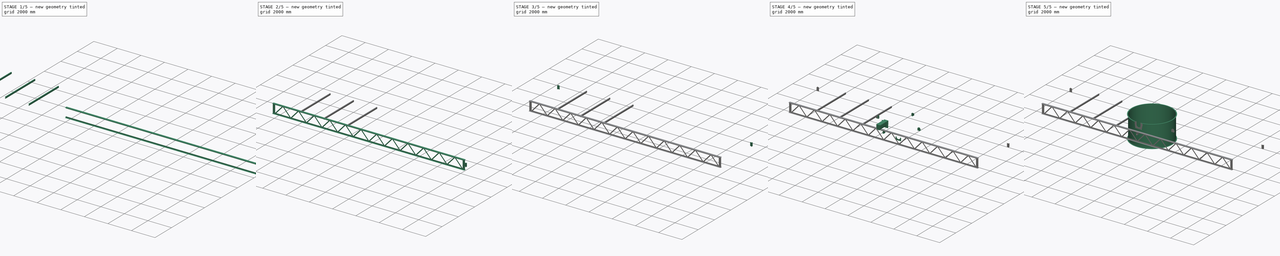
[diagram: build sequence overview — one tinted view per stage of 5, left to right]
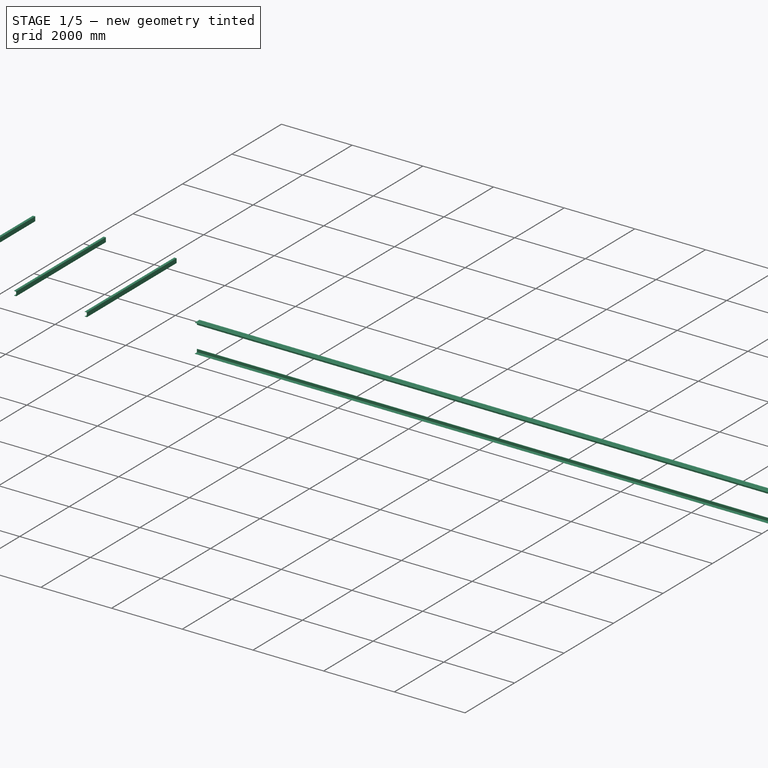
[diagram: stage 1 of 5 — iso view after this stage's code; geometry added in this stage tinted green]
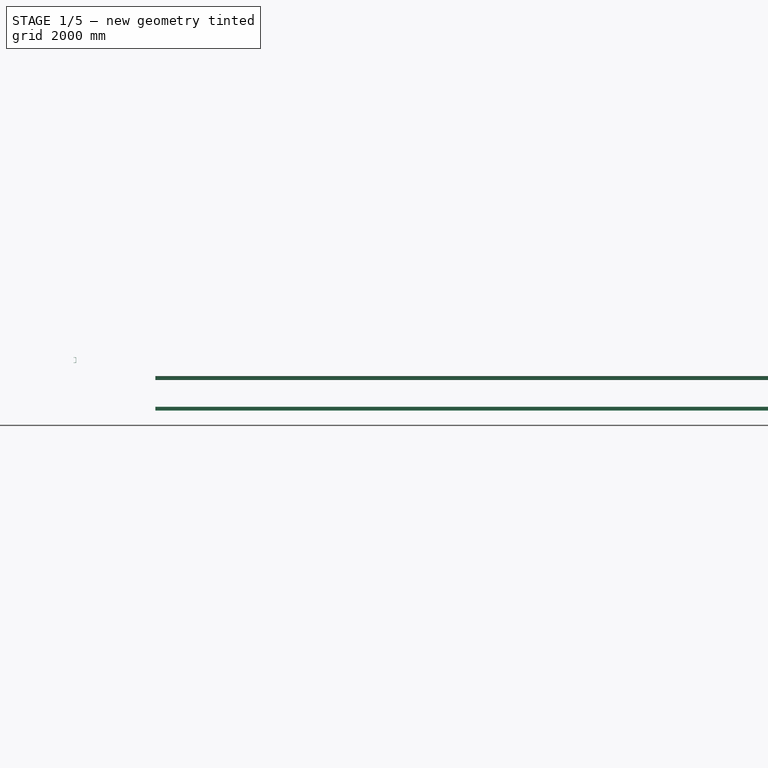
[diagram: stage 1 of 5 — front view after this stage's code; geometry added in this stage tinted green]
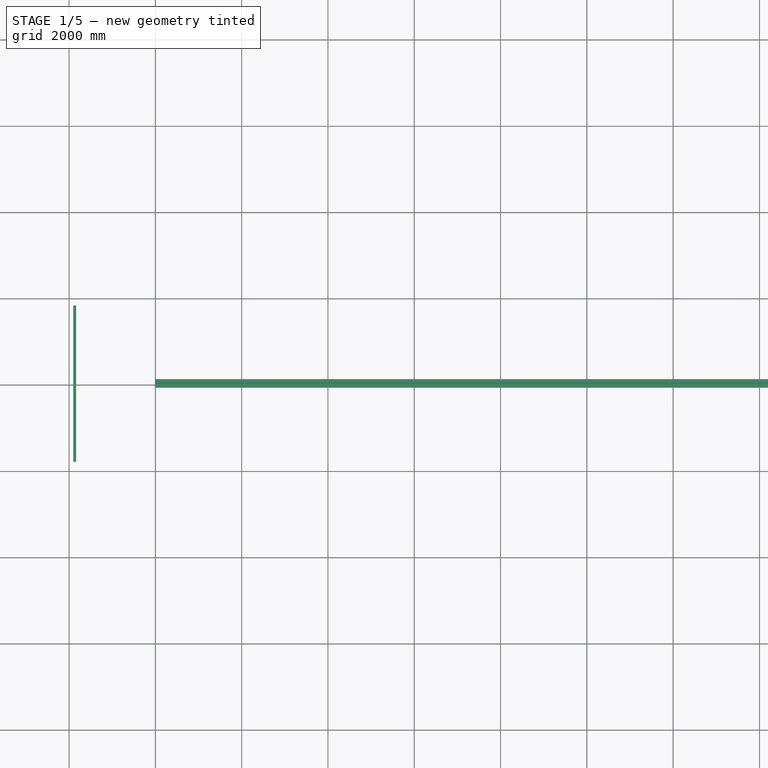
[diagram: stage 1 of 5 — top view after this stage's code; geometry added in this stage tinted green]
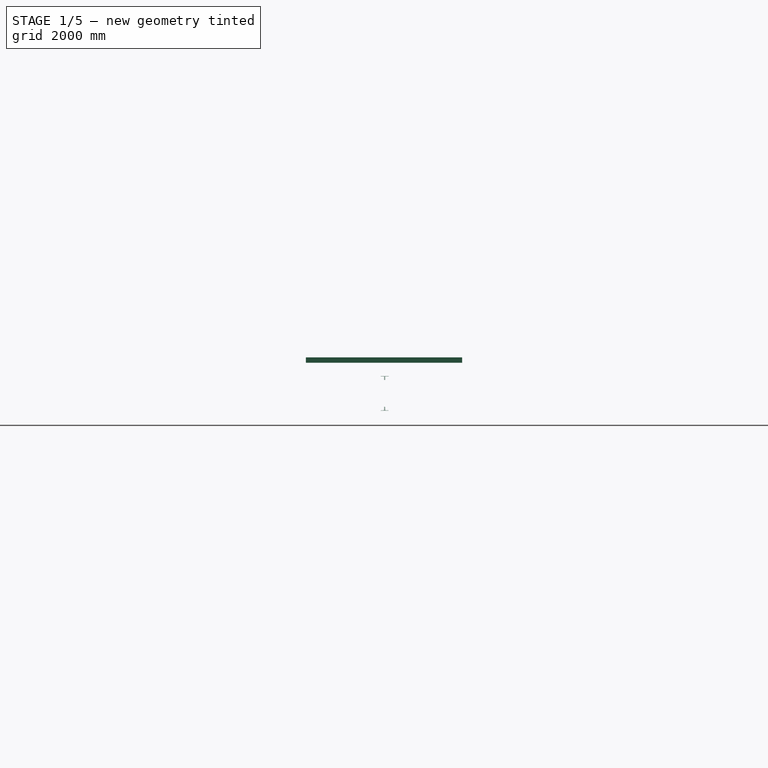
[diagram: stage 1 of 5 — right view after this stage's code; geometry added in this stage tinted green]
FCSTD DOCUMENT  (FreeCAD 1.0R39319 (Git))
Label: feedWellAssy
License: All rights reserved
LicenseURL: https://en.wikipedia.org/wiki/All_rights_reserved
objects: Sketcher::SketchObject×15, Part::Extrusion×15, Part::FeaturePython×8, Part::Mirroring×8, App::Part×5, Part::Cut×4, Part::Revolution×3, Part::Compound×3, Part::MultiFuse×2, Spreadsheet::Sheet×2, Part::Chamfer×1
note: 71 computed .brp shape members not serialized (recipe doc carries the construction recipe); baked Part::Feature solids carry a one-line shape summary decoded from their .brp

FEATURE [Part::FeaturePython] ChannelSteel  # WARN: FeaturePython — macro-defined, semantics opaque (R4)
  B = 65
  H = 125
  L = 3620
  Placement = pos=(1870,-1800,0) rot=(0,0,1;0rad)
  Solid = true
  g0 = 7.85
  mass = 43.7277
  size = 2
  standard = SS
  t1 = 6
  t2 = 8
  expr: .Placement.Base.x = Spreadsheet.dia / 2 + 170
  expr: .Placement.Base.y = -<<Spreadsheet_feedWell>>.dia / 2 - 100
  expr: L = Spreadsheet.dia + 220
FEATURE [Part::FeaturePython] AngleSteel004  # WARN: FeaturePython — macro-defined, semantics opaque (R4)
  A = 90
  B = 90
  L = 1000
  Placement = pos=(0,28.8,14.4) rot=(0,0,1;1.5708rad)
  Solid = false
  g0 = 7.85
  mass = 0
  size = 13
  standard = SS_Equal
  t = 8
FEATURE [Part::Mirroring] Mirror  label="AngleSteel (mirrored)"
  Base = (-2.54e-14,114.396,14.3963)
  Normal = (0,0,-1)
  Placement = pos=(0,0,800) rot=(0,0,1;0rad)
  Source = -> AngleSteel004
  expr: .Placement.Base.z = Spreadsheet001.H0
FEATURE [Part::Extrusion] Extrude017
  Base = -> AngleSteel004
  Dir = (-1,-2e-16,0)
  DirMode = 2
  FaceMakerClass = Part::FaceMakerBullseye
  FaceMakerMode = 3
  LengthFwd = 16500
  LengthRev = 0
  Reversed = true
  Solid = false
  Symmetric = false
  expr: LengthFwd = Spreadsheet001.L0
FEATURE [Part::Extrusion] Extrude018
  Base = -> Mirror
  Dir = (-1,-2e-16,0)
  DirMode = 2
  FaceMakerClass = Part::FaceMakerBullseye
  FaceMakerMode = 3
  LengthFwd = 16500
  LengthRev = 0
  Reversed = true
  Solid = false
  Symmetric = false
  expr: LengthFwd = Spreadsheet001.L0
FEATURE [Part::MultiFuse] Fusion001
  Shapes = -> [Extrude018,Extrude017]
FEATURE [Part::Mirroring] Mirror001  label="Fusion (mirrored)"
  Base = (-3.2e-15,28.7963,514.396)
  Normal = (0,-1,0)
  Placement = pos=(0,-6,0) rot=(0,0,1;0rad)
  Source = -> Fusion001
  expr: .Placement.Base.y = -Spreadsheet001.Gt0
FEATURE [Part::Compound] Compound
  Links = -> [Mirror001,Fusion001]
FEATURE [Part::FeaturePython] Array002  # Draft array (typed FeaturePython)
  AlwaysSyncPlacement = false
  Angle = 360
  ArrayType = 0
  Axis = (0,0,1)
  Base = -> ChannelSteel
  Center = (0,0,0)
  Count = 3
  ExpandArray = false
  Fuse = false
  IntervalAxis = (0,0,0)
  IntervalX = (2000,0,0)
  IntervalY = (0,100,0)
  IntervalZ = (0,0,100)
  NumberCircles = 3
  NumberPolar = 5
  NumberX = 3
  NumberY = 1
  NumberZ = 1
  Placement = pos=(0,0,1186) rot=(0,0,1;0rad)
  PlacementList = 3 placements: arithmetic series from (1870,-1800,0) step (2000,0,0) to (5870,-1800,0)
  RadialDistance = 50
  ScaleList = (3) [(1,1,1),(1,1,1),(1,1,1)]
  Symmetry = 1
  TangentialDistance = 25
FEATURE [Part::Mirroring] Mirror013  label="Array002 (mirrored)"
  Base = (0,0,0)
  Normal = (1,0,0)
  Source = -> Array002
FEATURE [App::Part] Part002  label="support"
  Group = -> [Extrude014,Mirror004,Sketch014,Mirror009,Mirror010,Compound004,AngleSteel003,Mirror011,ChannelSteel,Part005,Mirror012,Array002,Mirror013]
  Origin = -> Origin002
  Placement = pos=(0,0,-250) rot=(0,0,1;0rad)
  expr: .Placement.Base.z = <<Spreadsheet_feedWell>>.h1 - 1250
FEATURE [App::Part] Part004  label="feedWell"
  Group = -> [Part002,Part001,Spreadsheet,Spreadsheet001]
  Origin = -> Origin004
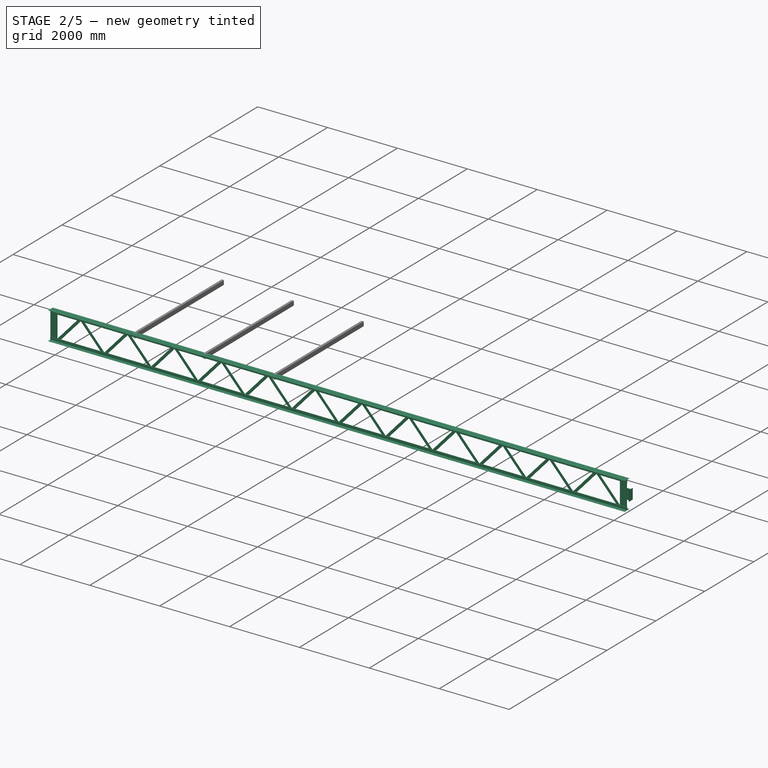
[diagram: stage 2 of 5 — iso view after this stage's code; geometry added in this stage tinted green]
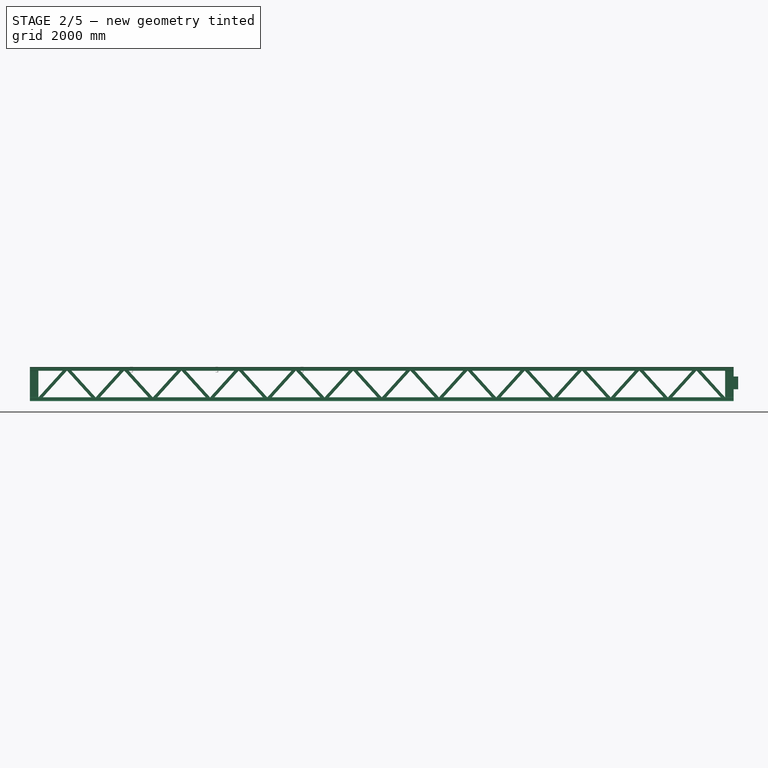
[diagram: stage 2 of 5 — front view after this stage's code; geometry added in this stage tinted green]
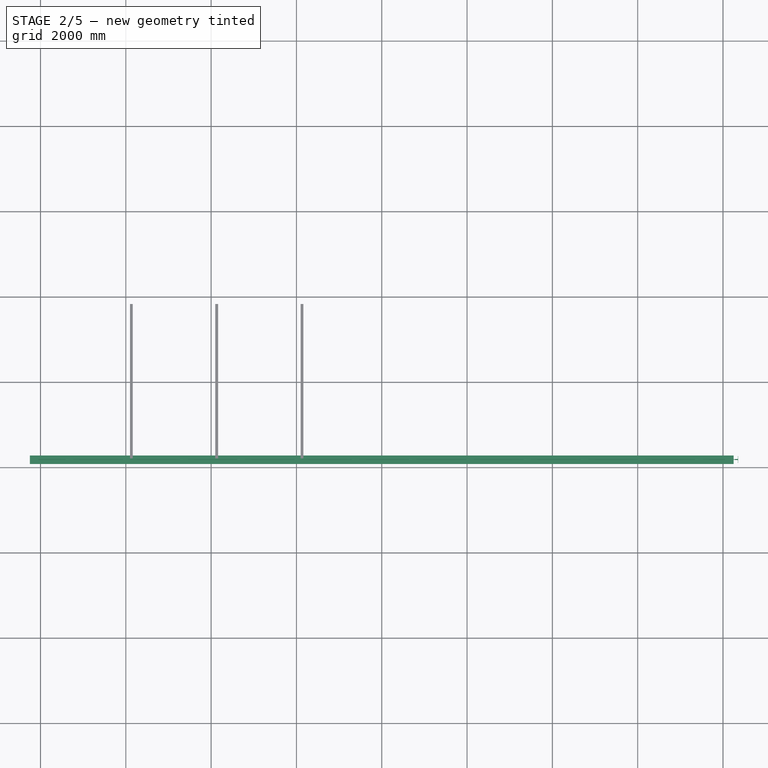
[diagram: stage 2 of 5 — top view after this stage's code; geometry added in this stage tinted green]
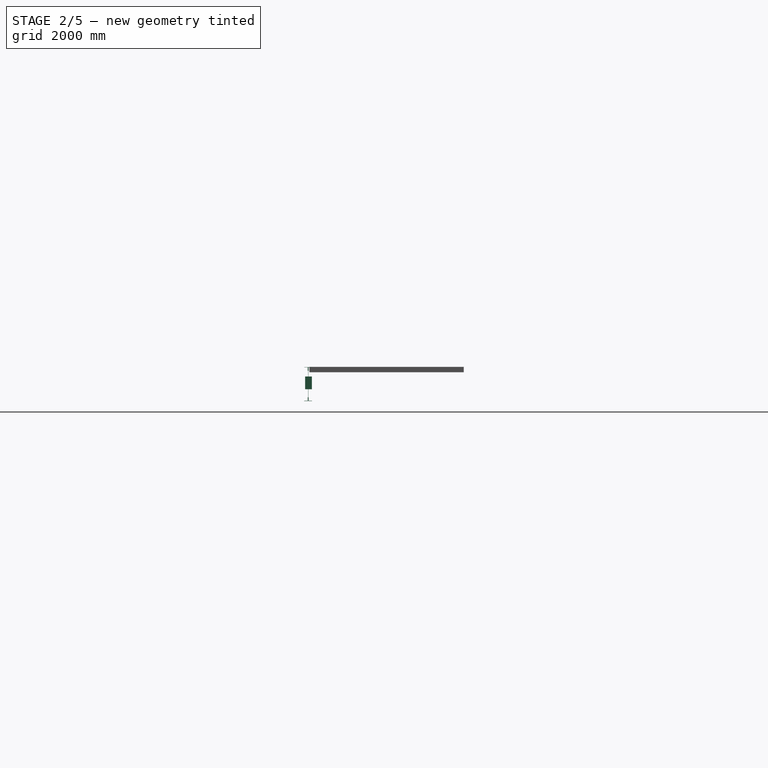
[diagram: stage 2 of 5 — right view after this stage's code; geometry added in this stage tinted green]
FEATURE [Sketcher::SketchObject] Sketch014
  ArcFitTolerance = 0
  FullyConstrained = true
  MakeInternals = false
  Placement = pos=(0,0,0) rot=(1,0,0;1.5708rad)
  sketch-geometry (4):
    g0: LineSegment StartX=0 StartY=0 StartZ=0 EndX=150 EndY=0 EndZ=0
    g1: LineSegment StartX=150 StartY=0 StartZ=0 EndX=150 EndY=300 EndZ=0
    g2: LineSegment StartX=150 StartY=300 StartZ=0 EndX=0 EndY=300 EndZ=0
    g3: LineSegment StartX=0 StartY=300 StartZ=0 EndX=0 EndY=0 EndZ=0
  constraints (11):
    c: Coincident(g0,g1)
    c: Coincident(g1,g2)
    c: Coincident(g2,g3)
    c: Coincident(g3,g0)
    c: Horizontal(g0)
    c: Horizontal(g2)
    c: Vertical(g1)
    c: Vertical(g3)
    c: Coincident(g0,g-1)
    c: DistanceX(g2,g2) = 150
    c: DistanceY(g1,g1) = 300
FEATURE [Part::Extrusion] Extrude014
  Base = -> Sketch014
  Dir = (0,-1,2e-16)
  DirMode = 2
  FaceMakerClass = Part::FaceMakerBullseye
  FaceMakerMode = 3
  LengthFwd = 6
  LengthRev = 0
  Solid = true
  Symmetric = true
FEATURE [Part::FeaturePython] AngleSteel003  # WARN: FeaturePython — macro-defined, semantics opaque (R4)
  A = 75
  B = 75
  L = 300
  Placement = pos=(117.5,40.5,0) rot=(0,0,1;3.14159rad)
  Solid = true
  g0 = 7.85
  mass = 2.05506
  size = 10
  standard = SS_Equal
  t = 6
FEATURE [Part::Mirroring] Mirror004  label="AngleSteel003 (mirrored)"
  Base = (200,0,0)
  Normal = (0,1,0)
  Source = -> AngleSteel003
FEATURE [Part::Compound] Compound004  label="gusset001"
  Links = -> [Extrude014,Mirror004,AngleSteel003]
  Placement = pos=(8200,-1819.5,725) rot=(0,0,1;0rad)
  expr: .Placement.Base.x = Spreadsheet.D0 / 2 - 300
  expr: .Placement.Base.y = -<<Spreadsheet_feedWell>>.dia / 2 - 119.5
  expr: .Placement.Base.z = 750 - (<<Spreadsheet_support>>.H0 - 750) / 2
FEATURE [Sketcher::SketchObject] Sketch015
  ArcFitTolerance = 0
  FullyConstrained = false
  MakeInternals = false
  Placement = pos=(0,0,0) rot=(1,0,0;1.5708rad)
  expr: Constraints[2] = Spreadsheet001.Gb0
  expr: Constraints[5] = Spreadsheet001.rp0
  expr: Constraints[8] = Spreadsheet001.H0 - 60
  sketch-geometry (3):
    g0: LineSegment StartX=200 StartY=44.4 StartZ=0 EndX=870.833 EndY=784.4 EndZ=0
    g1: LineSegment StartX=870.833 StartY=784.4 StartZ=0 EndX=1541.67 EndY=44.4 EndZ=0
    g2: LineSegment [constr] StartX=870.833 StartY=784.4 StartZ=0 EndX=870.833 EndY=523.531 EndZ=0
  constraints (9):
    c: Coincident(g0,g1)
    c: Horizontal(g0,g1)
    c: DistanceX(g-1,g0) = 200
    c: Coincident(g2,g0)
    c: Symmetric(g1,g0,g2)
    c: DistanceX(g0,g1) = 1341.67
    c: DistanceY(g-1,g-4) = 14.4
    c: DistanceY(g-4,g0) = 30
    c: DistanceY(g0,g0) = 740
FEATURE [Sketcher::SketchObject] Sketch016
  ArcFitTolerance = 0
  ExternalGeometry = -> [Sketch015]
  FullyConstrained = true
  MakeInternals = false
  Placement = pos=(0,0,14.4) rot=(1,0,0;1.5708rad)
  expr: Constraints[23] = Spreadsheet001.Lb0
  expr: Constraints[24] = Spreadsheet001.H0 - 20
  expr: Constraints[25] = Spreadsheet001.Lb0 / 2
  sketch-geometry (9):
    g0: LineSegment StartX=200 StartY=85.834 StartZ=0 EndX=838.349 EndY=790 EndZ=0
    g1: LineSegment StartX=870.833 StartY=714.166 StartZ=0 EndX=232.485 EndY=10 EndZ=0
    g2: LineSegment StartX=870.833 StartY=714.166 StartZ=0 EndX=1509.18 EndY=10 EndZ=0
    g3: LineSegment StartX=1541.67 StartY=85.834 StartZ=0 EndX=903.318 EndY=790 EndZ=0
    g4: LineSegment StartX=838.349 StartY=790 StartZ=0 EndX=903.318 EndY=790 EndZ=0
    g5: LineSegment StartX=1509.18 StartY=10 StartZ=0 EndX=1541.67 EndY=10 EndZ=0
    g6: LineSegment StartX=1541.67 StartY=10 StartZ=0 EndX=1541.67 EndY=85.834 EndZ=0
    g7: LineSegment StartX=232.485 StartY=10 StartZ=0 EndX=200 EndY=10 EndZ=0
    g8: LineSegment StartX=200 StartY=10 StartZ=0 EndX=200 EndY=85.834 EndZ=0
  constraints (27):
    c: Coincident(g7,g8)
    c: Coincident(g0,g8)
    c: Coincident(g1,g7)
    c: Coincident(g0,g4)
    c: Coincident(g1,g2)
    c: Coincident(g3,g4)
    c: Coincident(g2,g5)
    c: Coincident(g5,g6)
    c: Coincident(g3,g6)
    c: Horizontal(g7)
    c: Horizontal(g4)
    c: Vertical(g8)
    c: Vertical(g7,g-4)
    c: Horizontal(g0,g3)
    c: Horizontal(g5)
    c: Horizontal(g1,g2)
    c: Vertical(g6)
    c: PointOnObject(g-3,g6)
    c: Parallel(g1,g-4)
    c: Parallel(g1,g0)
    c: Parallel(g2,g-3)
    c: Parallel(g-3,g3)
    c: Vertical(g1,g-4)
    c: Distance(g1,g0) = 75
    c: DistanceY(g2,g3) = 780
    c: Distance(g1,g-4) = 37.5
    c: DistanceY(g-5,g7) = 10
FEATURE [Part::Extrusion] Extrude015
  Base = -> Sketch016
  Dir = (0,-1,2e-16)
  DirMode = 2
  FaceMakerClass = Part::FaceMakerBullseye
  FaceMakerMode = 3
  LengthFwd = 6
  LengthRev = 0
  Placement = pos=(0,28.8,0) rot=(0,0,1;0rad)
  Solid = true
  Symmetric = false
FEATURE [Part::FeaturePython] Array001  # Draft array (typed FeaturePython)
  AlwaysSyncPlacement = false
  Angle = 360
  ArrayType = 0
  Axis = (0,0,1)
  Base = -> Extrude015
  Center = (0,0,0)
  Count = 12
  ExpandArray = false
  Fuse = false
  IntervalAxis = (0,0,0)
  IntervalX = (1341.67,0,0)
  IntervalY = (0,100,0)
  IntervalZ = (0,0,100)
  NumberCircles = 3
  NumberPolar = 5
  NumberX = 12
  NumberY = 1
  NumberZ = 1
  PlacementList = 12 placements: arithmetic series from (0,28.8,0) step (1341.67,0,0) to (14758.3,28.8,0)
  RadialDistance = 50
  ScaleList = (12) [(1,1,1),(1,1,1),(1,1,1),(1,1,1),(1,1,1),(1,1,1),(1,1,1),(1,1,1),(1,1,1),(1,1,1),(1,1,1),(1,1,1)]
  Symmetry = 1
  TangentialDistance = 25
  expr: .IntervalX.x = Spreadsheet001.rp0
  expr: NumberX = Spreadsheet001.rn0
FEATURE [Spreadsheet::Sheet] Spreadsheet001  label="Spreadsheet_support"
  cells = A2='梁成H0; B2(H0)=800; A3='梁長L0; B3(L0)=16500; A4='玄材shp; B4(shp)='90x90x7; A5='玄材ゲージラインGL0; B5(GL0)=40; A6='ラチス材Lshp; B6(Lshp)='6x75; A7='ラチス材幅Lb0; B7(Lb0)=75; A8='ラチス材厚Lt0; B8(Gt0)=6; A9='ガセットプレート幅Gb0; B9(Gb0)=200; A10='ラチスピッチrp0; B10(rp0)==(L0 - 2 * Gb0) / rn0; A11='ラチス配列数rn0; B11(rn0)=12; B16='t; C16='A; D16='GLine; A17='40x40x3; B17=3; C17=40; D17=22; A18='40x40x5; B18=5; C18=40; D18=22; A19='50x50x4; B19=4; C19=50; D19=30; A20='50x50x6; B20=6; C20=50; D20=30; A21='65x65x6; B21=6; C21=65; D21=35; A22='65x65x8; B22=8; C22=65; D22=35; A23='75x75x6; B23=6; C23=75; D23=40; A24='75x75x9; B24=9; C24=75; D24=40; A25='75x75x12; B25=12; C25=75; D25=40; A26='90x90x7; B26=7; C26=90; D26=50; A27='90x90x10; B27=10; C27=90; D27=50; A28='90x90x13; B28=13; C28=90; D28=50; A29='100x100x7; B29=7; C29=100; D29=55; A30='100x100x10; B30=10; C30=100; D30=55; A31='100x100x13; B31=13; C31=100; D31=55; A34='6x38; B34=6; C34=38; A35='9x38; B35=9; C35=38; A36='6x44; B36=6; C36=44; A37='9x44; B37=9; C37=44; A38='4.5x50; B38=4.5; C38=50; A39='6x50; B39=6; C39=50; A40='9x50; B40=9; C40=50; A41='6x65; B41=6; C41=65; A42='9x65; B42=9; C42=65; A43='6x75; B43=6; C43=75; A44='9x75; B44=9; C44=75; A45='6x90; B45=6; C45=90; A46='9x90; B46=9; C46=90
FEATURE [Sketcher::SketchObject] Sketch017
  ArcFitTolerance = 0
  FullyConstrained = true
  MakeInternals = false
  Placement = pos=(0,0,14.4) rot=(1,0,0;1.5708rad)
  expr: Constraints[21] = Spreadsheet001.L0
  expr: Constraints[22] = <<Spreadsheet_support>>.H0 - 20
  sketch-geometry (8):
    g0: LineSegment StartX=0 StartY=10 StartZ=0 EndX=200 EndY=10 EndZ=0
    g1: LineSegment StartX=200 StartY=10 StartZ=0 EndX=200 EndY=790 EndZ=0
    g2: LineSegment StartX=200 StartY=790 StartZ=0 EndX=0 EndY=790 EndZ=0
    g3: LineSegment StartX=0 StartY=790 StartZ=0 EndX=0 EndY=10 EndZ=0
    g4: LineSegment StartX=16500 StartY=790 StartZ=0 EndX=16300 EndY=790 EndZ=0
    g5: LineSegment StartX=16300 StartY=790 StartZ=0 EndX=16300 EndY=10 EndZ=0
    g6: LineSegment StartX=16300 StartY=10 StartZ=0 EndX=16500 EndY=10 EndZ=0
    g7: LineSegment StartX=16500 StartY=10 StartZ=0 EndX=16500 EndY=790 EndZ=0
  constraints (23):
    c: Coincident(g0,g1)
    c: Coincident(g1,g2)
    c: Coincident(g2,g3)
    c: Coincident(g3,g0)
    c: Horizontal(g0)
    c: Horizontal(g2)
    c: Vertical(g1)
    c: Vertical(g3)
    c: Vertical(g-1,g0)
    c: Coincident(g0,g-3)
    c: Coincident(g4,g5)
    c: Coincident(g5,g6)
    c: Coincident(g6,g7)
    c: Coincident(g7,g4)
    c: Horizontal(g4)
    c: Horizontal(g6)
    c: Vertical(g5)
    c: Vertical(g7)
    c: Equal(g0,g6)
    c: Horizontal(g6,g0)
    c: Horizontal(g1,g4)
    c: DistanceX(g0,g6) = 16500
    c: DistanceY(g1,g1) = 780
FEATURE [Part::Extrusion] Extrude016
  Base = -> Sketch017
  Dir = (0,-1,2e-16)
  DirMode = 2
  FaceMakerClass = Part::FaceMakerBullseye
  FaceMakerMode = 3
  LengthFwd = 6
  LengthRev = 0
  Placement = pos=(0,28.8,0) rot=(0,0,1;0rad)
  Solid = true
  Symmetric = false
  expr: LengthFwd = Spreadsheet001.Gt0
FEATURE [App::Part] Part005  label="latticeBeam"
  Group = -> [Sketch015,Sketch017,Sketch016,Fusion001,Mirror,Mirror001,Extrude015,Extrude016,Extrude018,Extrude017,Array001,AngleSteel004,Compound]
  Origin = -> Origin005
  Placement = pos=(-8250,1800,434) rot=(0,0,1;0rad)
  expr: .Placement.Base.x = -<<Spreadsheet_support>>.L0 / 2
  expr: .Placement.Base.y = <<Spreadsheet_feedWell>>.dia / 2 + 100
  expr: .Placement.Base.z = 534 - (<<Spreadsheet_support>>.H0 - 700)
FEATURE [Part::Mirroring] Mirror012  label="latticeBeam (mirrored)"
  Base = (150,0,334)
  Normal = (0,-1,0)
  Source = -> Part005
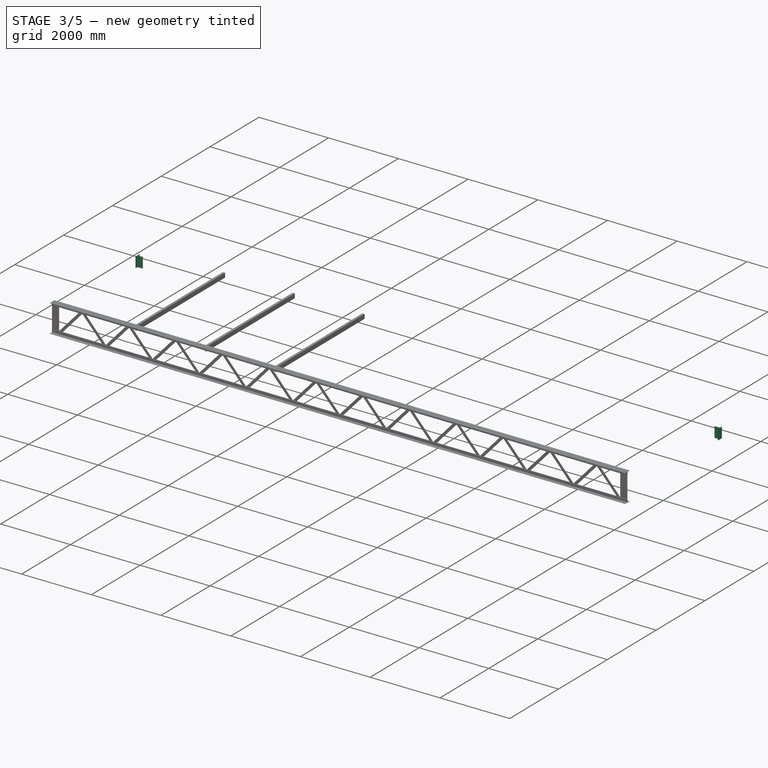
[diagram: stage 3 of 5 — iso view after this stage's code; geometry added in this stage tinted green]
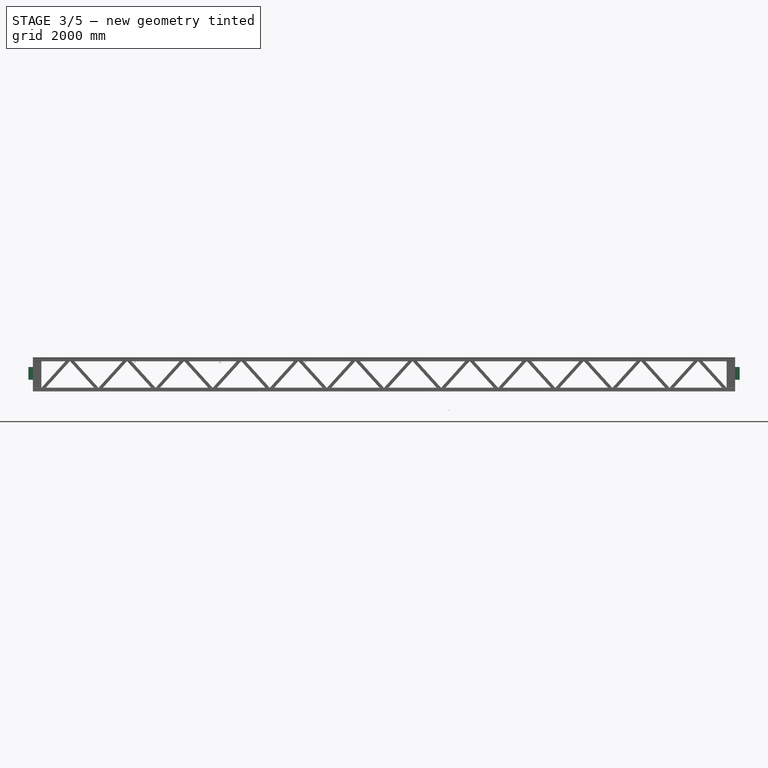
[diagram: stage 3 of 5 — front view after this stage's code; geometry added in this stage tinted green]
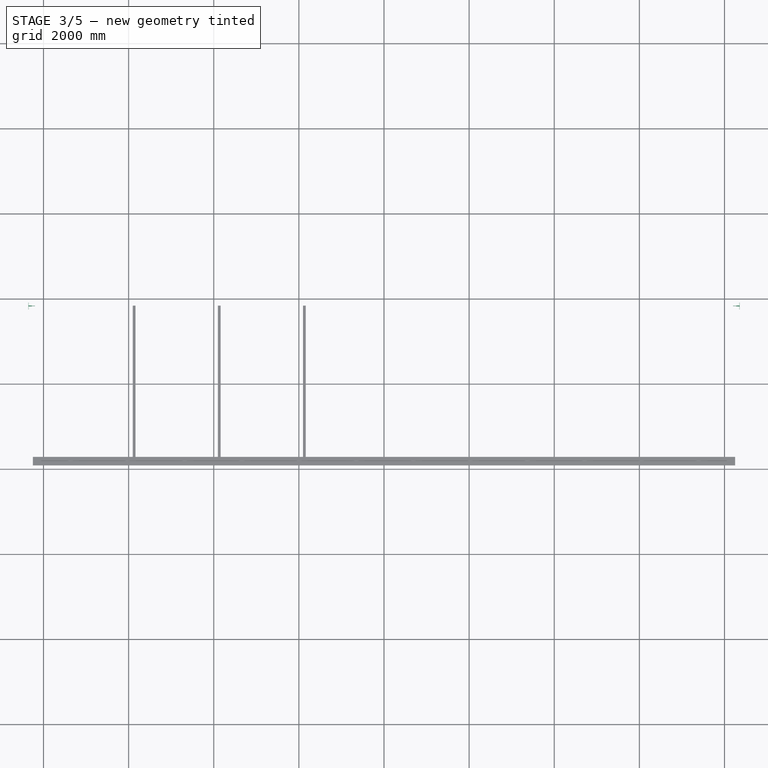
[diagram: stage 3 of 5 — top view after this stage's code; geometry added in this stage tinted green]
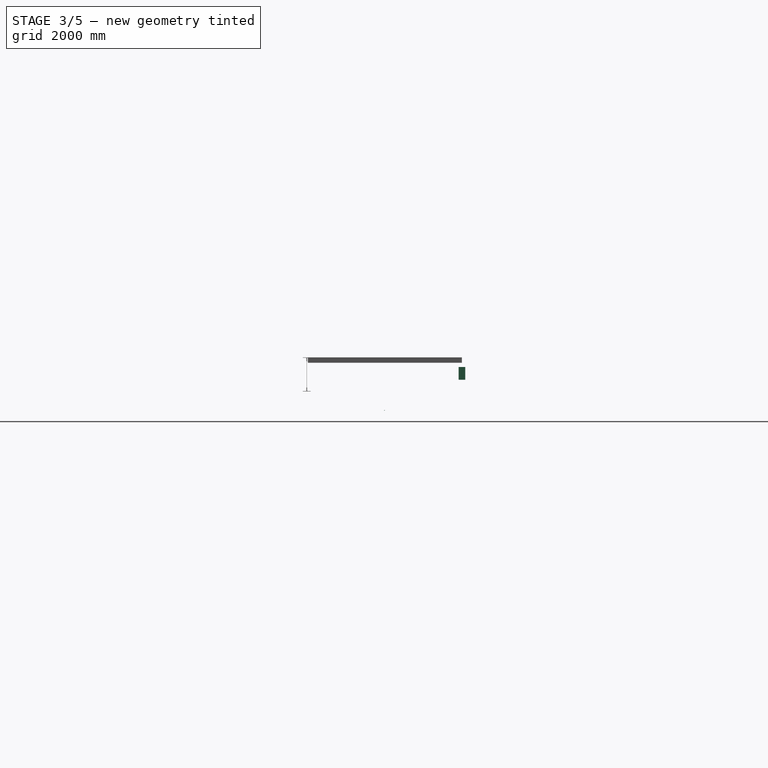
[diagram: stage 3 of 5 — right view after this stage's code; geometry added in this stage tinted green]
FEATURE [App::Part] Part  label="pipeBrg"
  Group = -> [Sketch006,Sketch007,Extrude005,Extrude006]
  Origin = -> Origin
  Placement = pos=(0,-1675.6,1680) rot=(0,0,1;0rad)
  expr: .Placement.Base.y = -<<Spreadsheet_feedWell>>.dia / 2 + 24.4
  expr: .Placement.Base.z = <<Spreadsheet_feedWell>>.h0 - 260 + 20
FEATURE [Sketcher::SketchObject] Sketch008
  ArcFitTolerance = 0
  FullyConstrained = false
  MakeInternals = false
  sketch-geometry (4):
    g0: LineSegment StartX=1299.04 StartY=50 StartZ=0 EndX=1507.04 EndY=50 EndZ=0
    g1: LineSegment StartX=1507.04 StartY=50 StartZ=0 EndX=1507.04 EndY=-50 EndZ=0
    g2: LineSegment StartX=1507.04 StartY=-50 StartZ=0 EndX=1299.04 EndY=-50 EndZ=0
    g3: ArcOfCircle CenterX=-0.0298456 CenterY=4.574e-13 CenterZ=0 NormalX=0 NormalY=0 NormalZ=1 AngleXU=0 Radius=1300.03 StartAngle=6.24472 EndAngle=6.32166
  constraints (12):
    c: Horizontal(g0)
    c: Coincident(g0,g1)
    c: Vertical(g1)
    c: Coincident(g1,g2)
    c: Horizontal(g2)
    c: DistanceY(g-1,g0) = 50
    c: DistanceY(g1,g1) = 100
    c: Coincident(g3,g2)
    c: Coincident(g3,g0)
    c: PointOnObject(g0,g-5)
    c: PointOnObject(g2,g-6)
    c: DistanceX(g0,g0) = 208
FEATURE [Part::Extrusion] Extrude007
  Base = -> Sketch008
  Dir = (0,0,1)
  DirMode = 2
  FaceMakerClass = Part::FaceMakerBullseye
  FaceMakerMode = 3
  LengthFwd = 10
  LengthRev = 0
  Solid = true
  Symmetric = false
FEATURE [Sketcher::SketchObject] Sketch009
  ArcFitTolerance = 0
  ExternalGeometry = -> [Extrude007]
  FullyConstrained = true
  MakeInternals = false
  MapMode = 5
  Placement = pos=(0,0,10) rot=(0,0,1;0rad)
  sketch-geometry (8):
    g0: LineSegment StartX=1299.04 StartY=50 StartZ=0 EndX=1507.04 EndY=50 EndZ=0
    g1: LineSegment StartX=1507.04 StartY=50 StartZ=0 EndX=1507.04 EndY=45 EndZ=0
    g2: LineSegment StartX=1507.04 StartY=45 StartZ=0 EndX=1299.04 EndY=45 EndZ=0
    g3: LineSegment StartX=1299.04 StartY=45 StartZ=0 EndX=1299.04 EndY=50 EndZ=0
    g4: LineSegment StartX=1299.04 StartY=-50 StartZ=0 EndX=1507.04 EndY=-50 EndZ=0
    g5: LineSegment StartX=1507.04 StartY=-50 StartZ=0 EndX=1507.04 EndY=-45 EndZ=0
    g6: LineSegment StartX=1507.04 StartY=-45 StartZ=0 EndX=1299.04 EndY=-45 EndZ=0
    g7: LineSegment StartX=1299.04 StartY=-45 StartZ=0 EndX=1299.04 EndY=-50 EndZ=0
  constraints (22):
    c: Coincident(g0,g1)
    c: Coincident(g1,g2)
    c: Coincident(g2,g3)
    c: Coincident(g3,g0)
    c: Horizontal(g0)
    c: Horizontal(g2)
    c: Vertical(g1)
    c: Vertical(g3)
    c: Coincident(g4,g5)
    c: Coincident(g5,g6)
    c: Coincident(g6,g7)
    c: Coincident(g7,g4)
    c: Horizontal(g4)
    c: Horizontal(g6)
    c: Vertical(g5)
    c: Vertical(g7)
    c: Coincident(g0,g-3)
    c: DistanceY(g1,g1) = 5
    c: DistanceY(g5,g5) = 5
    c: Coincident(g4,g-3)
    c: Vertical(g2,g6)
    c: PointOnObject(g4,g-4)
FEATURE [Part::Extrusion] Extrude008
  Base = -> Sketch009
  Dir = (0,0,1)
  DirMode = 2
  FaceMakerClass = Part::FaceMakerBullseye
  FaceMakerMode = 3
  LengthFwd = 200
  LengthRev = 0
  Solid = true
  Symmetric = false
FEATURE [Part::Chamfer] Chamfer
  Base = -> Extrude008
  EdgeLinks = -> Extrude008 [Edge7,Edge19]
  Edges = 2 edges: [Edge7 r1=130 r2=70,Edge19 r1=130 r2=70]
FEATURE [Part::Compound] Compound002  label="gusset"
  Links = -> [Extrude007,Chamfer]
FEATURE [Sketcher::SketchObject] Sketch010
  ArcFitTolerance = 0
  ExternalGeometry = -> [Compound002]
  FullyConstrained = true
  MakeInternals = false
  MapMode = 5
  Placement = pos=(0,0,10) rot=(0,0,1;0rad)
  sketch-geometry (1):
    g0: Circle CenterX=1532.04 CenterY=0 CenterZ=0 NormalX=0 NormalY=0 NormalZ=1 AngleXU=0 Radius=7
  constraints (3):
    c: Diameter(g0) = 14
    c: PointOnObject(g0,g-1)
    c: Distance(g0,g-3) = 25
FEATURE [Part::Extrusion] Extrude009
  Base = -> Sketch010
  Dir = (0,0,1)
  DirMode = 2
  FaceMakerClass = Part::FaceMakerBullseye
  FaceMakerMode = 3
  LengthFwd = 10
  LengthRev = 0
  Reversed = true
  Solid = true
  Symmetric = false
FEATURE [App::Part] Part001  label="centerWell001"
  Group = -> [Chamfer,Sketch005,Sketch010,Sketch009,Sketch008,Compound002,Revolve,Revolve001,Revolve002,Extrude001,Extrude008,Extrude004,Extrude003,Extrude,Extrude002,Extrude007,Extrude009,Sketch001,Sketch003,Sketch,Sketch002,Sketch004,AngleSteel,AngleSteel001,Cut003,Fusion,Cut001,Cut,Cut002,Array,Part]
  Origin = -> Origin001
  Placement = pos=(0,0,0) rot=(0,0,1;1.5708rad)
FEATURE [Part::Mirroring] Mirror009  label="gusset001 (mirrored)"
  Base = (0,0,0)
  Normal = (1,0,0)
  Source = -> Compound004
FEATURE [Part::Mirroring] Mirror010  label="gusset001 (mirrored) (mirrored)"
  Base = (0,0,0)
  Normal = (0,1,0)
  Source = -> Mirror009
FEATURE [Part::Mirroring] Mirror011  label="gusset001 (mirrored)001"
  Base = (0,0,0)
  Normal = (0,1,0)
  Source = -> Compound004
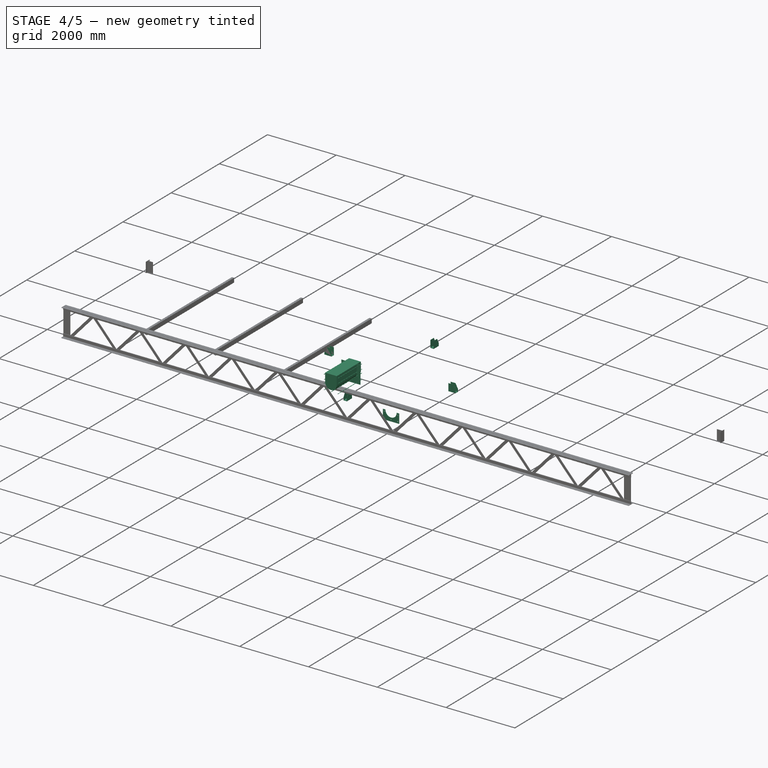
[diagram: stage 4 of 5 — iso view after this stage's code; geometry added in this stage tinted green]
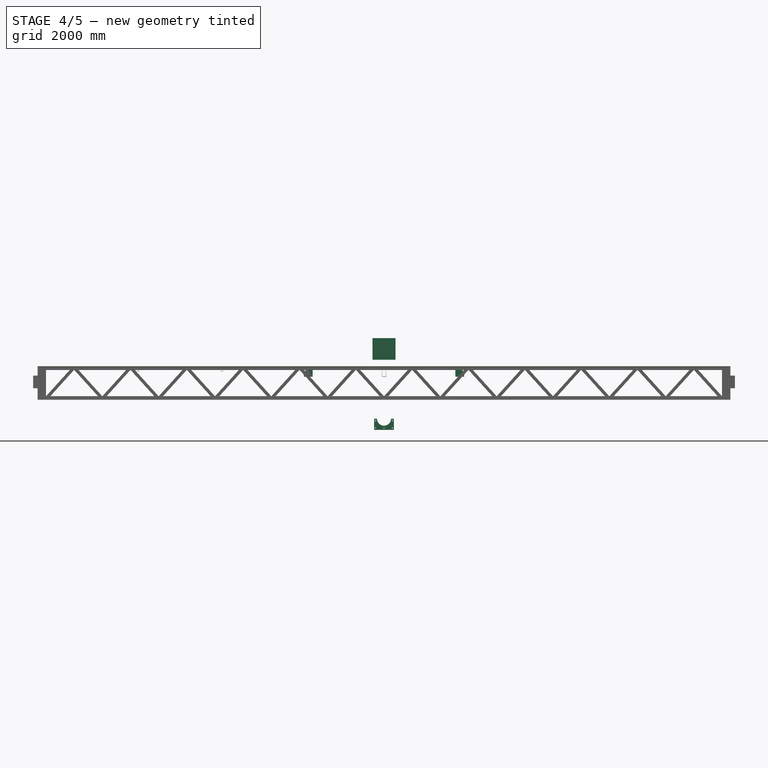
[diagram: stage 4 of 5 — front view after this stage's code; geometry added in this stage tinted green]
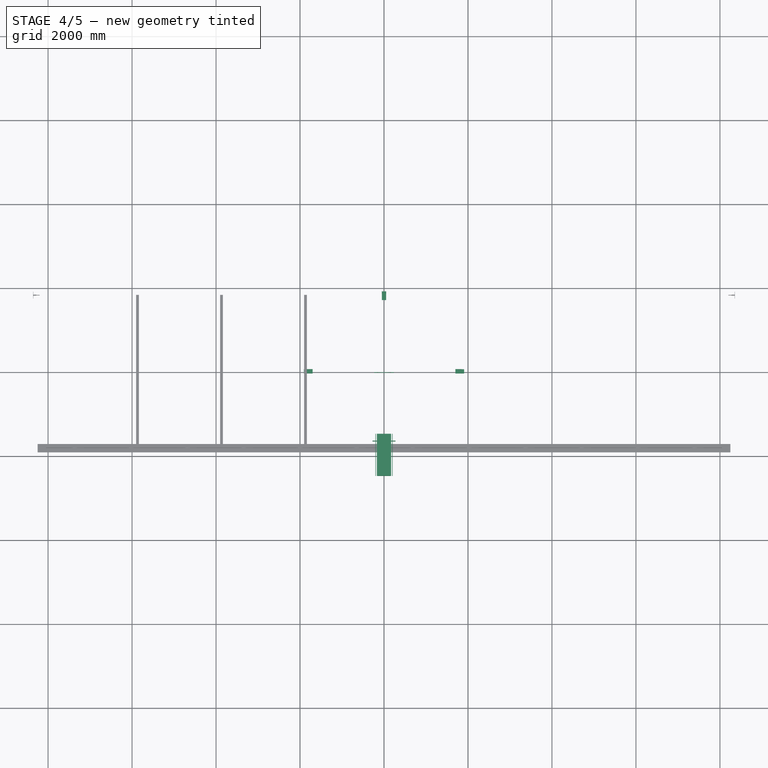
[diagram: stage 4 of 5 — top view after this stage's code; geometry added in this stage tinted green]
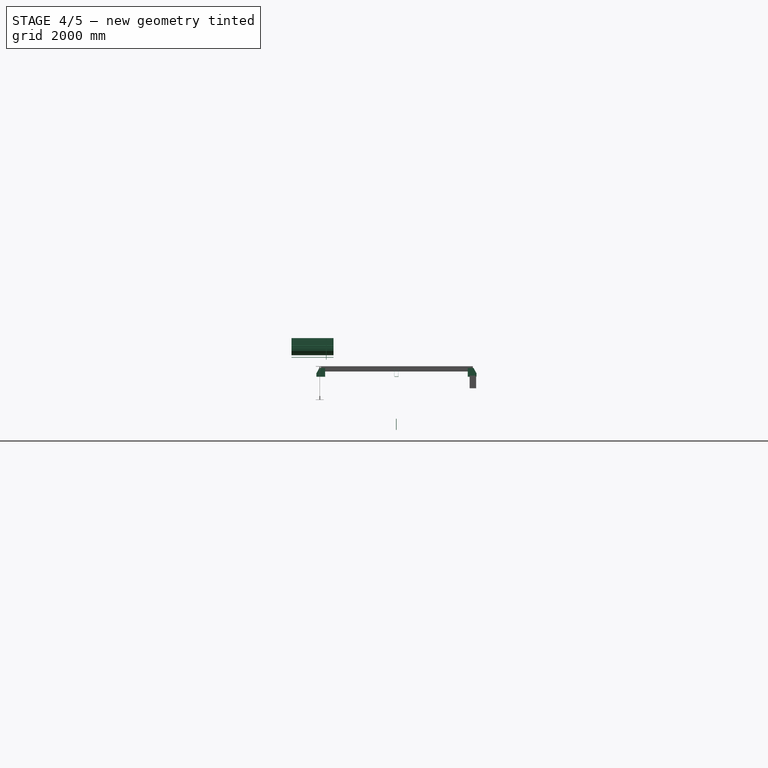
[diagram: stage 4 of 5 — right view after this stage's code; geometry added in this stage tinted green]
FEATURE [Sketcher::SketchObject] Sketch002
  ArcFitTolerance = 0
  FullyConstrained = true
  MakeInternals = false
  MapMode = 5
  Placement = pos=(0,3.48e-13,0) rot=(0,0,1;0rad)
  sketch-geometry (4):
    g0: LineSegment StartX=-275 StartY=-1260.58 StartZ=0 EndX=-275 EndY=-1290.58 EndZ=0
    g1: LineSegment StartX=-275 StartY=-1260.58 StartZ=0 EndX=275 EndY=-1260.58 EndZ=0
    g2: LineSegment StartX=275 StartY=-1260.58 StartZ=0 EndX=275 EndY=-1290.58 EndZ=0
    g3: ArcOfCircle CenterX=0 CenterY=0 CenterZ=0 NormalX=0 NormalY=0 NormalZ=1 AngleXU=0 Radius=1319.55 StartAngle=4.50245 EndAngle=4.92233
  constraints (13):
    c: Vertical(g0)
    c: Coincident(g0,g1)
    c: Horizontal(g1)
    c: Coincident(g1,g2)
    c: Vertical(g2)
    c: Coincident(g3,g0)
    c: Coincident(g3,g2)
    c: PointOnObject(g-3,g0)
    c: PointOnObject(g-4,g2)
    c: DistanceY(g-3,g0) = 10
    c: DistanceY(g0,g0) = 30
    c: Coincident(g3,g-1)
    c: DistanceY(g-1,g1) = -1260.58  'brg'
FEATURE [Part::Extrusion] Extrude001
  Base = -> Sketch002
  Dir = (0,0,1)
  DirMode = 2
  FaceMakerClass = Part::FaceMakerBullseye
  FaceMakerMode = 3
  LengthFwd = 5
  LengthRev = 0
  Placement = pos=(0,-400,1400) rot=(0,0,1;0rad)
  Solid = true
  Symmetric = false
  expr: .Placement.Base.y = -(<<Spreadsheet_feedWell>>.dia - 2600) / 2
  expr: .Placement.Base.z = <<Spreadsheet_feedWell>>.h0 - 520
FEATURE [Sketcher::SketchObject] Sketch003
  ArcFitTolerance = 0
  ExternalGeometry = -> [Extrude001]
  FullyConstrained = true
  MakeInternals = false
  MapMode = 5
  Placement = pos=(0,7.323e-12,1405) rot=(0,0,1;0rad)
  expr: .Placement.Base.z = <<Spreadsheet_feedWell>>.h0 - 520 + 5
  sketch-geometry (4):
    g0: LineSegment StartX=-275 StartY=-1675.58 StartZ=0 EndX=275 EndY=-1675.58 EndZ=0
    g1: LineSegment StartX=275 StartY=-1675.58 StartZ=0 EndX=275 EndY=-1665.58 EndZ=0
    g2: LineSegment StartX=275 StartY=-1665.58 StartZ=0 EndX=-275 EndY=-1665.58 EndZ=0
    g3: LineSegment StartX=-275 StartY=-1665.58 StartZ=0 EndX=-275 EndY=-1675.58 EndZ=0
  constraints (12):
    c: Coincident(g0,g1)
    c: Coincident(g1,g2)
    c: Coincident(g2,g3)
    c: Coincident(g3,g0)
    c: Horizontal(g0)
    c: Horizontal(g2)
    c: Vertical(g1)
    c: Vertical(g3)
    c: DistanceY(g1,g-3) = 5
    c: DistanceY(g1,g1) = 10
    c: PointOnObject(g1,g-4)
    c: PointOnObject(g2,g-5)
FEATURE [Part::Extrusion] Extrude002
  Base = -> Sketch003
  Dir = (0,0,1)
  DirMode = 2
  FaceMakerClass = Part::FaceMakerBullseye
  FaceMakerMode = 3
  LengthFwd = 515
  LengthRev = 0
  Solid = true
  Symmetric = false
FEATURE [Sketcher::SketchObject] Sketch004
  ArcFitTolerance = 0
  FullyConstrained = true
  MakeInternals = false
  MapMode = 5
  Placement = pos=(0,-2500,7.07e-12) rot=(1,0,0;1.5708rad)
  sketch-geometry (4):
    g0: LineSegment StartX=-170 StartY=1920 StartZ=0 EndX=-170 EndY=1680 EndZ=0
    g1: ArcOfCircle CenterX=0 CenterY=1680 CenterZ=0 NormalX=0 NormalY=0 NormalZ=1 AngleXU=0 Radius=170 StartAngle=3.14159 EndAngle=6.28318
    g2: LineSegment StartX=170 StartY=1680 StartZ=0 EndX=170 EndY=1920 EndZ=0
    g3: LineSegment StartX=170 StartY=1920 StartZ=0 EndX=-170 EndY=1920 EndZ=0
  constraints (12):
    c: Vertical(g0)
    c: Tangent(g0,g1) = -1.5708
    c: Coincident(g1,g2)
    c: Vertical(g2)
    c: Coincident(g2,g3)
    c: Coincident(g3,g0)
    c: Horizontal(g3)
    c: Radius(g1) = 170
    c: DistanceX(g-2,g1) = 170
    c: PointOnObject(g2,g-3)
    c: Distance(g1,g3) = 240
    c: PointOnObject(g1,g-2)
FEATURE [Part::Extrusion] Extrude003
  Base = -> Sketch004
  Dir = (0,-1,6.1e-15)
  DirMode = 2
  FaceMakerClass = Part::FaceMakerBullseye
  FaceMakerMode = 3
  LengthFwd = 1000
  LengthRev = 0
  Reversed = true
  Solid = true
  Symmetric = false
FEATURE [Sketcher::SketchObject] Sketch005
  ArcFitTolerance = 0
  FullyConstrained = true
  MakeInternals = false
  MapMode = 5
  Placement = pos=(0,-2500,7.07e-12) rot=(1,0,0;1.5708rad)
  sketch-geometry (9):
    g0: Circle CenterX=-200 CenterY=1730 CenterZ=0 NormalX=0 NormalY=0 NormalZ=1 AngleXU=0 Radius=6
    g1: Circle CenterX=-200 CenterY=1870 CenterZ=0 NormalX=0 NormalY=0 NormalZ=1 AngleXU=0 Radius=6
    g2: Circle CenterX=200 CenterY=1870 CenterZ=0 NormalX=0 NormalY=0 NormalZ=1 AngleXU=0 Radius=6
    g3: Circle CenterX=200 CenterY=1730 CenterZ=0 NormalX=0 NormalY=0 NormalZ=1 AngleXU=0 Radius=6
    g4: Circle CenterX=-200 CenterY=1630 CenterZ=0 NormalX=0 NormalY=0 NormalZ=1 AngleXU=0 Radius=6
    g5: Circle CenterX=-200 CenterY=1460 CenterZ=0 NormalX=0 NormalY=0 NormalZ=1 AngleXU=0 Radius=6
    g6: Circle CenterX=200 CenterY=1630 CenterZ=0 NormalX=0 NormalY=0 NormalZ=1 AngleXU=0 Radius=6
    g7: Circle CenterX=200 CenterY=1460 CenterZ=0 NormalX=0 NormalY=0 NormalZ=1 AngleXU=0 Radius=6
    g8: Circle CenterX=0 CenterY=1460 CenterZ=0 NormalX=0 NormalY=0 NormalZ=1 AngleXU=0 Radius=6
  constraints (26):
    c: Radius(g0) = 6
    c: DistanceY(g-3,g0) = 50
    c: Radius(g1) = 6
    c: Vertical(g0,g1)
    c: Equal(g0,g3) = 6
    c: Equal(g1,g2) = 6
    c: Vertical(g3,g2)
    c: Radius(g4) = 6
    c: Equal(g4,g5) = 6
    c: DistanceY(g5,g4) = 170
    c: Vertical(g5,g4)
    c: Equal(g4,g6) = 6
    c: Equal(g6,g7) = 6
    c: DistanceY(g7,g6) = 170
    c: Vertical(g7,g6)
    c: PointOnObject(g8,g-2)
    c: Radius(g8) = 6
    c: Horizontal(g8,g5)
    c: DistanceY(g4,g-3) = 50
    c: Symmetric(g4,g6,g-2)
    c: Vertical(g4,g0)
    c: DistanceX(g5,g7) = 400
    c: DistanceY(g0,g1) = 140
    c: Horizontal(g0,g3)
    c: Horizontal(g1,g2)
    c: Vertical(g6,g3)
FEATURE [Part::Extrusion] Extrude004
  Base = -> Sketch005
  Dir = (0,-1,6.1e-15)
  DirMode = 2
  FaceMakerClass = Part::FaceMakerBullseye
  FaceMakerMode = 3
  LengthFwd = 1000
  LengthRev = 0
  Reversed = true
  Solid = true
  Symmetric = false
FEATURE [Spreadsheet::Sheet] Spreadsheet  label="Spreadsheet_feedWell"
  cells = A2='tankDia   D0; B2(D0)=17000; A3='depth of water  hw; B3(hw)=3200; A4='feedWell dia  dia; B4(dia)==D0 * 0.2; A5='feedWell hight  h0; B5(h0)==hw * 0.6; A6='bracket hight h1; B6(h1)=1000; A7='bracket angle ba; B7(ba)=0
FEATURE [Sketcher::SketchObject] Sketch006
  ArcFitTolerance = 0
  FullyConstrained = false
  MakeInternals = false
  Placement = pos=(0,0,0) rot=(1,0,0;1.5708rad)
  sketch-geometry (23):
    g0: LineSegment StartX=-235 StartY=2.04e-14 StartZ=0 EndX=-166.5 EndY=2.04e-14 EndZ=0
    g1: LineSegment StartX=235 StartY=0 StartZ=0 EndX=235 EndY=240 EndZ=0
    g2: LineSegment StartX=235 StartY=240 StartZ=0 EndX=-235 EndY=240 EndZ=0
    g3: LineSegment StartX=-235 StartY=240 StartZ=0 EndX=-235 EndY=2.84e-14 EndZ=0
    g4: ArcOfCircle CenterX=0 CenterY=0 CenterZ=0 NormalX=0 NormalY=0 NormalZ=1 AngleXU=0 Radius=166.5 StartAngle=0 EndAngle=3.14159
    g5: ArcOfCircle CenterX=200 CenterY=200 CenterZ=0 NormalX=0 NormalY=0 NormalZ=1 AngleXU=0 Radius=7 StartAngle=-9e-16 EndAngle=3.14159
    g6: ArcOfCircle CenterX=200 CenterY=180 CenterZ=0 NormalX=0 NormalY=0 NormalZ=1 AngleXU=0 Radius=7 StartAngle=3.14159 EndAngle=6.28319
    g7: LineSegment StartX=193 StartY=200 StartZ=0 EndX=193 EndY=180 EndZ=0
    g8: LineSegment StartX=207 StartY=180 StartZ=0 EndX=207 EndY=200 EndZ=0
    g9: ArcOfCircle CenterX=200 CenterY=60 CenterZ=0 NormalX=0 NormalY=0 NormalZ=1 AngleXU=0 Radius=7 StartAngle=0 EndAngle=3.14159
    g10: ArcOfCircle CenterX=200 CenterY=40 CenterZ=0 NormalX=0 NormalY=0 NormalZ=1 AngleXU=0 Radius=7 StartAngle=3.14159 EndAngle=6.28319
    g11: LineSegment StartX=193 StartY=60 StartZ=0 EndX=193 EndY=40 EndZ=0
    g12: LineSegment StartX=207 StartY=40 StartZ=0 EndX=207 EndY=60 EndZ=0
    g13: ArcOfCircle CenterX=-200 CenterY=200.393 CenterZ=0 NormalX=0 NormalY=0 NormalZ=1 AngleXU=0 Radius=7 StartAngle=3e-16 EndAngle=3.14159
    g14: ArcOfCircle CenterX=-200 CenterY=180.393 CenterZ=0 NormalX=0 NormalY=0 NormalZ=1 AngleXU=0 Radius=7 StartAngle=3.14159 EndAngle=6.28319
    g15: LineSegment StartX=-207 StartY=200.393 StartZ=0 EndX=-207 EndY=180.393 EndZ=0
    g16: LineSegment StartX=-193 StartY=180.393 StartZ=0 EndX=-193 EndY=200.393 EndZ=0
    g17: ArcOfCircle CenterX=-200 CenterY=60.3929 CenterZ=0 NormalX=0 NormalY=0 NormalZ=1 AngleXU=0 Radius=7 StartAngle=0 EndAngle=3.14159
    g18: ArcOfCircle CenterX=-200 CenterY=40.3929 CenterZ=0 NormalX=0 NormalY=0 NormalZ=1 AngleXU=0 Radius=7 StartAngle=3.14159 EndAngle=6.28319
    g19: LineSegment StartX=-207 StartY=60.3929 StartZ=0 EndX=-207 EndY=40.3929 EndZ=0
    g20: LineSegment StartX=-193 StartY=40.3929 StartZ=0 EndX=-193 EndY=60.3929 EndZ=0
    g21: LineSegment [constr] StartX=207.004 StartY=200.734 StartZ=0 EndX=-193 EndY=200.393 EndZ=0
    g22: LineSegment StartX=166.5 StartY=0 StartZ=0 EndX=235 EndY=0 EndZ=0
  constraints (58):
    c: Coincident(g22,g1)
    c: Coincident(g1,g2)
    c: Coincident(g2,g3)
    c: Coincident(g3,g0)
    c: Horizontal(g0)
    c: Vertical(g1)
    c: Vertical(g3)
    c: PointOnObject(g0,g-1)
    c: Coincident(g4,g-1)
    c: Radius(g4) = 166.5
    c: DistanceX(g2,g2) = 470
    c: Symmetric(g1,g2,g-2)
    c: DistanceY(g1,g1) = 240
    c: DistanceX(g5,g5) = 14
    c: DistanceY(g7,g7) = 20
    c: DistanceY(g5,g1) = 40
    c: DistanceX(g4,g5) = 200
    c: Tangent(g9,g11) = -1.5708
    c: Tangent(g11,g10) = -1.5708
    c: Tangent(g10,g12) = -1.5708
    c: Tangent(g12,g9) = -1.5708
    c: Equal(g9,g10)
    c: Vertical(g11)
    c: Equal(g5,g9) = 14
    c: Equal(g7,g11) = 20
    c: Vertical(g9,g6)
    c: DistanceY(g9,g5) = 140
    c: Equal(g5,g13) = 14
    c: Equal(g7,g15) = 20
    c: Tangent(g17,g19) = -1.5708
    c: Tangent(g19,g18) = -1.5708
    c: Tangent(g18,g20) = -1.5708
    c: Tangent(g20,g17) = -1.5708
    c: Equal(g17,g18)
    c: Vertical(g19)
    c: Equal(g13,g17) = 14
    c: Equal(g15,g19) = 20
    c: Vertical(g17,g14)
    c: DistanceY(g17,g13) = 140
    c: Angle(g21) = -3.14074
    c: Coincident(g0,g4)
    c: Coincident(g22,g4)
    c: Horizontal(g22)
    c: PointOnObject(g1,g-1)
    c: Vertical(g16)
    c: Vertical(g15)
    c: Coincident(g13,g21)
    c: Tangent(g5,g8) = -1.5708
    c: Tangent(g16,g13) = -1.5708
    c: Tangent(g15,g14) = -1.5708
    c: Tangent(g16,g14) = -1.5708
    c: Tangent(g15,g13) = -1.5708
    c: DistanceX(g13,g4) = 200
    c: Vertical(g8)
    c: Vertical(g7)
    c: Tangent(g5,g7) = -1.5708
    c: Tangent(g7,g6) = -1.5708
    c: Tangent(g8,g6) = -1.5708
FEATURE [Part::Extrusion] Extrude005
  Base = -> Sketch006
  Dir = (0,-1,2e-16)
  DirMode = 2
  FaceMakerClass = Part::FaceMakerBullseye
  FaceMakerMode = 3
  LengthFwd = 10
  LengthRev = 0
  Solid = true
  Symmetric = false
FEATURE [Sketcher::SketchObject] Sketch007
  ArcFitTolerance = 0
  ExternalGeometry = -> [Extrude005]
  FullyConstrained = false
  MakeInternals = false
  Placement = pos=(0,0,0) rot=(1,0,0;1.5708rad)
  sketch-geometry (26):
    g0: LineSegment StartX=-235 StartY=0 StartZ=0 EndX=-166.5 EndY=-2.04e-14 EndZ=0
    g1: LineSegment StartX=235 StartY=0 StartZ=0 EndX=235 EndY=-267.623 EndZ=0
    g2: LineSegment StartX=235 StartY=-267.623 StartZ=0 EndX=-235 EndY=-267.623 EndZ=0
    g3: LineSegment StartX=-235 StartY=-267.623 StartZ=0 EndX=-235 EndY=0 EndZ=0
    g4: ArcOfCircle CenterX=0 CenterY=-2.04e-14 CenterZ=0 NormalX=0 NormalY=0 NormalZ=1 AngleXU=0 Radius=166.5 StartAngle=3.14159 EndAngle=6.28319
    g5: ArcOfCircle CenterX=200 CenterY=-40 CenterZ=0 NormalX=0 NormalY=0 NormalZ=1 AngleXU=0 Radius=7 StartAngle=3e-16 EndAngle=3.14159
    g6: ArcOfCircle CenterX=200 CenterY=-60 CenterZ=0 NormalX=0 NormalY=0 NormalZ=1 AngleXU=0 Radius=7 StartAngle=3.14159 EndAngle=6.28319
    g7: LineSegment StartX=193 StartY=-40 StartZ=0 EndX=193 EndY=-60 EndZ=0
    g8: LineSegment StartX=207 StartY=-60 StartZ=0 EndX=207 EndY=-40 EndZ=0
    g9: ArcOfCircle CenterX=200 CenterY=-210 CenterZ=0 NormalX=0 NormalY=0 NormalZ=1 AngleXU=0 Radius=7 StartAngle=0 EndAngle=3.14159
    g10: ArcOfCircle CenterX=200 CenterY=-230 CenterZ=0 NormalX=0 NormalY=0 NormalZ=1 AngleXU=0 Radius=7 StartAngle=3.14159 EndAngle=6.28319
    g11: LineSegment StartX=193 StartY=-210 StartZ=0 EndX=193 EndY=-230 EndZ=0
    g12: LineSegment StartX=207 StartY=-230 StartZ=0 EndX=207 EndY=-210 EndZ=0
    g13: ArcOfCircle CenterX=-200 CenterY=-40 CenterZ=0 NormalX=0 NormalY=0 NormalZ=1 AngleXU=0 Radius=7 StartAngle=0 EndAngle=3.14159
    g14: ArcOfCircle CenterX=-200 CenterY=-60 CenterZ=0 NormalX=0 NormalY=0 NormalZ=1 AngleXU=0 Radius=7 StartAngle=3.14159 EndAngle=6.28319
    g15: LineSegment StartX=-207 StartY=-40 StartZ=0 EndX=-207 EndY=-60 EndZ=0
    g16: LineSegment StartX=-193 StartY=-60 StartZ=0 EndX=-193 EndY=-40 EndZ=0
    g17: ArcOfCircle CenterX=-200 CenterY=-210 CenterZ=0 NormalX=0 NormalY=0 NormalZ=1 AngleXU=0 Radius=7 StartAngle=1.4e-15 EndAngle=3.14159
    g18: ArcOfCircle CenterX=-200 CenterY=-230 CenterZ=0 NormalX=0 NormalY=0 NormalZ=1 AngleXU=0 Radius=7 StartAngle=3.14159 EndAngle=6.28319
    g19: LineSegment StartX=-207 StartY=-210 StartZ=0 EndX=-207 EndY=-230 EndZ=0
    g20: LineSegment StartX=-193 StartY=-230 StartZ=0 EndX=-193 EndY=-210 EndZ=0
    g21: LineSegment StartX=166.5 StartY=-2.04e-14 StartZ=0 EndX=235 EndY=0 EndZ=0
    g22: ArcOfCircle CenterX=0 CenterY=-210 CenterZ=0 NormalX=0 NormalY=0 NormalZ=1 AngleXU=0 Radius=7 StartAngle=-9e-16 EndAngle=3.14159
    g23: ArcOfCircle CenterX=0 CenterY=-230 CenterZ=0 NormalX=0 NormalY=0 NormalZ=1 AngleXU=0 Radius=7 StartAngle=3.14159 EndAngle=6.28319
    g24: LineSegment StartX=-7 StartY=-210 StartZ=0 EndX=-7 EndY=-230 EndZ=0
    g25: LineSegment StartX=7 StartY=-230 StartZ=0 EndX=7 EndY=-210 EndZ=0
  constraints (65):
    c: Coincident(g21,g1)
    c: Coincident(g1,g2)
    c: Coincident(g2,g3)
    c: Coincident(g3,g0)
    c: Horizontal(g2)
    c: Vertical(g1)
    c: Vertical(g3)
    c: Coincident(g21,g-3)
    c: Coincident(g0,g-4)
    c: Coincident(g4,g-1)
    c: Horizontal(g4,g4)
    c: Horizontal(g4,g4)
    c: Tangent(g5,g7) = -1.5708
    c: Tangent(g7,g6) = -1.5708
    c: Tangent(g6,g8) = -1.5708
    c: Tangent(g8,g5) = -1.5708
    c: Equal(g5,g6)
    c: Vertical(g7)
    c: DistanceY(g8,g8) = 20
    c: DistanceX(g5,g5) = 14
    c: Vertical(g5,g-5)
    c: DistanceY(g5,g4) = 40
    c: Tangent(g9,g11) = -1.5708
    c: Tangent(g11,g10) = -1.5708
    c: Tangent(g10,g12) = -1.5708
    c: Tangent(g12,g9) = -1.5708
    c: Equal(g9,g10)
    c: Vertical(g11)
    c: Equal(g8,g12) = 20
    c: Equal(g5,g9) = 14
    c: Vertical(g6,g9)
    c: Tangent(g13,g15) = -1.5708
    c: Tangent(g15,g14) = -1.5708
    c: Tangent(g14,g16) = -1.5708
    c: Tangent(g16,g13) = -1.5708
    c: Equal(g13,g14)
    c: Vertical(g15)
    c: Equal(g8,g16) = 20
    c: Equal(g5,g13) = 14
    c: Tangent(g17,g19) = -1.5708
    c: Tangent(g19,g18) = -1.5708
    c: Tangent(g18,g20) = -1.5708
    c: Tangent(g20,g17) = -1.5708
    c: Equal(g17,g18)
    c: Vertical(g19)
    c: Equal(g16,g20) = 20
    c: Equal(g13,g17) = 14
    c: Vertical(g14,g17)
    c: Tangent(g22,g24) = -1.5708
    c: Tangent(g24,g23) = -1.5708
    c: Tangent(g23,g25) = -1.5708
    c: Tangent(g25,g22) = -1.5708
    c: Equal(g22,g23)
    c: Vertical(g24)
    c: DistanceX(g22,g22) = 14
    c: DistanceY(g24,g24) = 20
    c: PointOnObject(g22,g-2)
    c: Horizontal(g9,g22)
    c: DistanceY(g9,g5) = 170
    c: DistanceY(g17,g13) = 170
    c: DistanceX(g14,g6) = 400
    c: DistanceY(g13,g0) = 40
    c: Coincident(g0,g4)
    c: Coincident(g4,g21)
    c: Radius(g4) = 166.5
FEATURE [Part::Extrusion] Extrude006
  Base = -> Sketch007
  Dir = (0,-1,2e-16)
  DirMode = 2
  FaceMakerClass = Part::FaceMakerBullseye
  FaceMakerMode = 3
  LengthFwd = 10
  LengthRev = 0
  Solid = true
  Symmetric = false
FEATURE [Part::Cut] Cut003
  Base = -> Compound002
  Placement = pos=(400,0,998.5) rot=(0,0,1;0rad)
  Tool = -> Extrude009
  expr: .Placement.Base.x = (<<Spreadsheet_feedWell>>.dia - 2600) / 2
  expr: .Placement.Base.z = Spreadsheet.h1 - 1.5
FEATURE [Part::FeaturePython] Array  # Draft array (typed FeaturePython)
  AlwaysSyncPlacement = false
  Angle = 360
  ArrayType = 1
  Axis = (0,0,1)
  Base = -> Cut003
  Center = (0,0,0)
  Count = 4
  ExpandArray = false
  Fuse = false
  IntervalAxis = (0,0,0)
  IntervalX = (50,0,0)
  IntervalY = (0,50,0)
  IntervalZ = (0,0,50)
  NumberCircles = 3
  NumberPolar = 4
  NumberX = 2
  NumberY = 2
  NumberZ = 1
  PlacementList = 4 placements: [(400,0,998.5),(0,400,998.5),(-400,4.89859e-14,998.5),(-8.88178e-14,-400,998.5)]
  RadialDistance = 50
  ScaleList = (4) [(1,1,1),(1,1,1),(1,1,1),(1,1,1)]
  Symmetry = 1
  TangentialDistance = 25
  expr: .Placement.Rotation.Angle = <<Spreadsheet_feedWell>>.ba
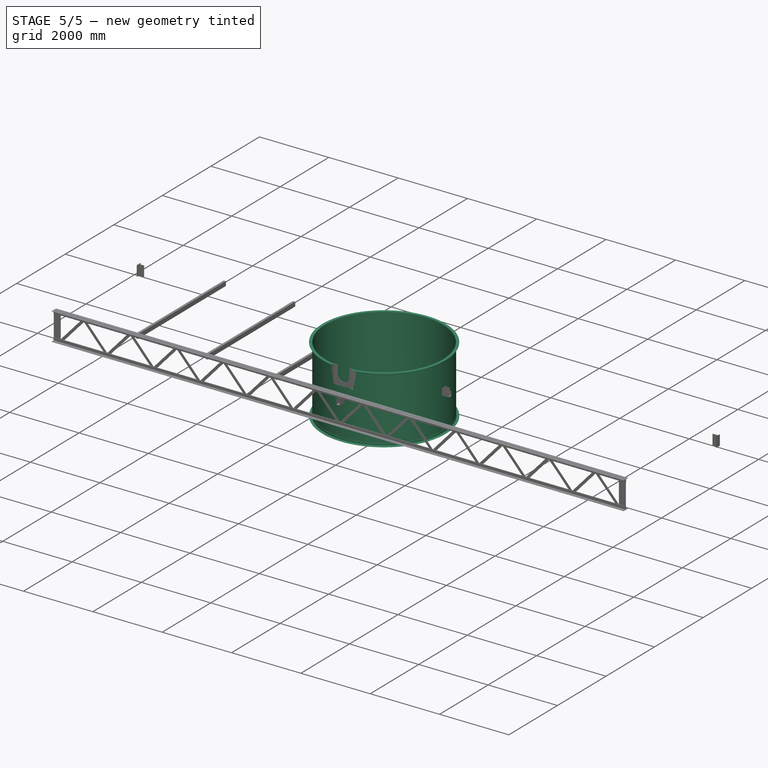
[diagram: stage 5 of 5 — iso view after this stage's code; geometry added in this stage tinted green]
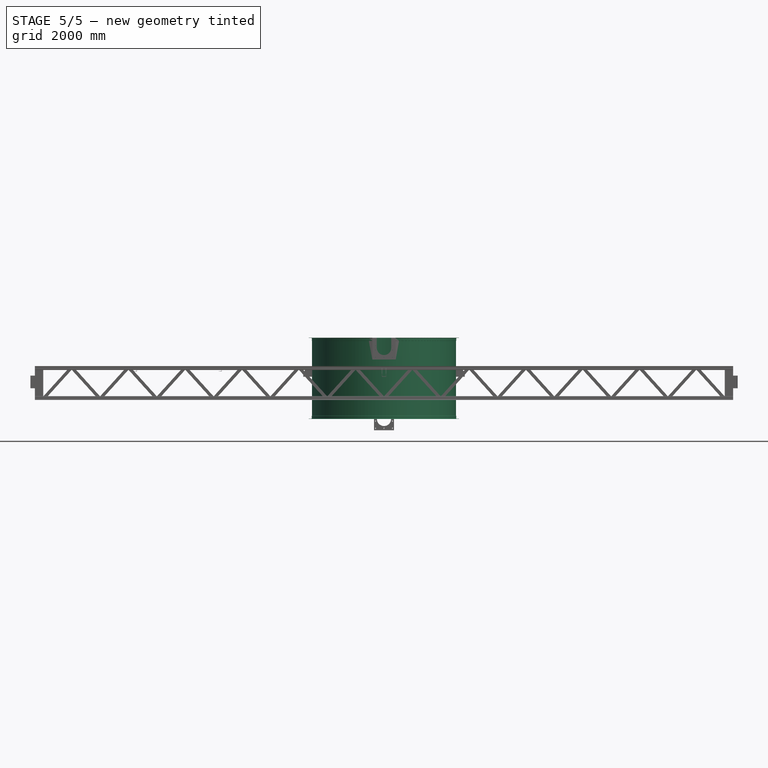
[diagram: stage 5 of 5 — front view after this stage's code; geometry added in this stage tinted green]
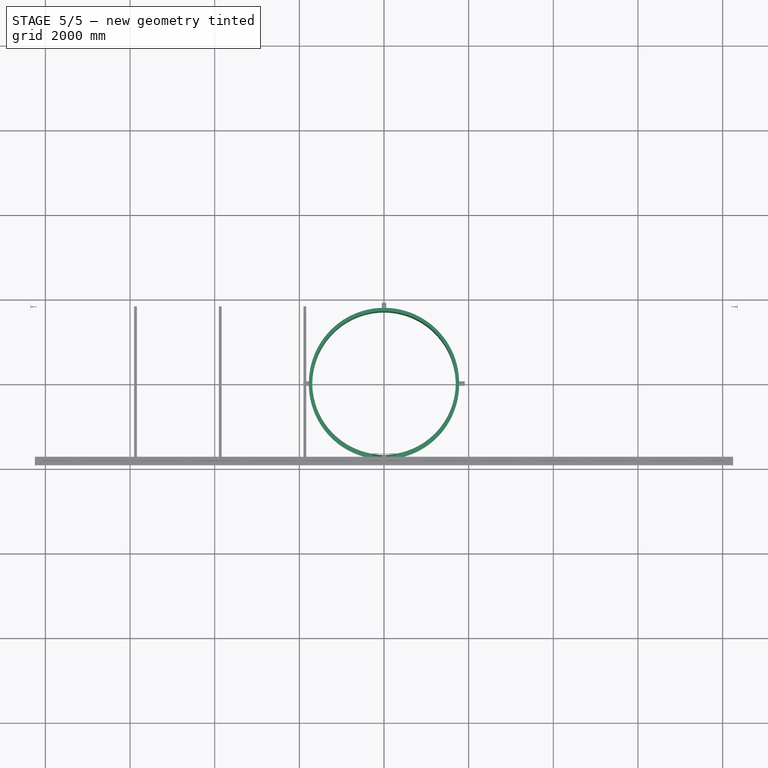
[diagram: stage 5 of 5 — top view after this stage's code; geometry added in this stage tinted green]
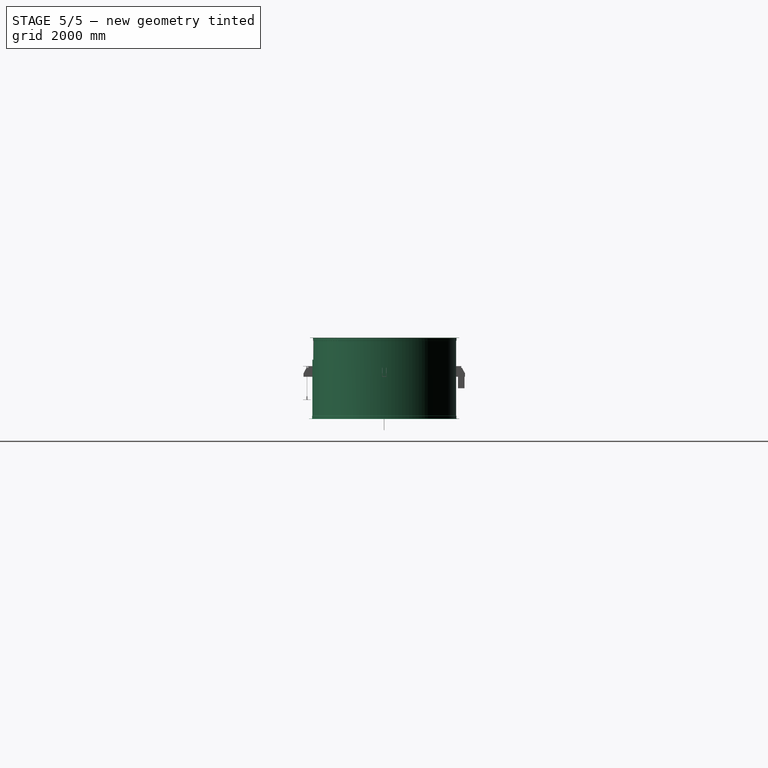
[diagram: stage 5 of 5 — right view after this stage's code; geometry added in this stage tinted green]
FEATURE [Sketcher::SketchObject] Sketch
  ArcFitTolerance = 0
  FullyConstrained = true
  MakeInternals = false
  Placement = pos=(0,0,0) rot=(1,0,0;1.5708rad)
  expr: Constraints[11] = Spreadsheet.dia / 2
  expr: Constraints[9] = Spreadsheet.h0
  sketch-geometry (4):
    g0: LineSegment StartX=1695 StartY=0 StartZ=0 EndX=1700 EndY=0 EndZ=0
    g1: LineSegment StartX=1700 StartY=0 StartZ=0 EndX=1700 EndY=1920 EndZ=0
    g2: LineSegment StartX=1700 StartY=1920 StartZ=0 EndX=1695 EndY=1920 EndZ=0
    g3: LineSegment StartX=1695 StartY=1920 StartZ=0 EndX=1695 EndY=0 EndZ=0
  constraints (12):
    c: Coincident(g0,g1)
    c: Coincident(g1,g2)
    c: Coincident(g2,g3)
    c: Coincident(g3,g0)
    c: Horizontal(g0)
    c: Horizontal(g2)
    c: Vertical(g1)
    c: Vertical(g3)
    c: DistanceX(g2,g2) = 5
    c: DistanceY(g1,g1) = 1920
    c: PointOnObject(g0,g-1)
    c: DistanceX(g-1,g0) = 1700
FEATURE [Part::Revolution] Revolve
  Angle = 360
  Axis = (0,0,1)
  Base = (0,0,0)
  FaceMakerClass = Part::FaceMakerBullseye
  Solid = true
  Source = -> Sketch
  Symmetric = false
FEATURE [Part::FeaturePython] AngleSteel  # WARN: FeaturePython — macro-defined, semantics opaque (R4)
  A = 75
  B = 75
  L = 1000
  Placement = pos=(1700,0,0) rot=(0,0,1;0rad)
  Solid = false
  g0 = 7.85
  mass = 0
  size = 10
  standard = SS_Equal
  t = 6
  expr: .Placement.Base.x = Spreadsheet.dia / 2
FEATURE [Part::Revolution] Revolve001
  Angle = 360
  Axis = (0,0,1)
  Base = (0,0,0)
  FaceMakerClass = Part::FaceMakerBullseye
  Solid = false
  Source = -> AngleSteel
  Symmetric = false
FEATURE [Part::FeaturePython] AngleSteel001  # WARN: FeaturePython — macro-defined, semantics opaque (R4)
  A = 75
  B = 75
  L = 1000
  Placement = pos=(1700,0,1920) rot=(0,1,0;1.5708rad)
  Solid = false
  g0 = 7.85
  mass = 0
  size = 10
  standard = SS_Equal
  t = 6
  expr: .Placement.Base.x = Spreadsheet.dia / 2
  expr: .Placement.Base.z = Spreadsheet.h0
FEATURE [Part::Revolution] Revolve002
  Angle = 360
  Axis = (0,0,1)
  Base = (0,0,0)
  FaceMakerClass = Part::FaceMakerBullseye
  Solid = false
  Source = -> AngleSteel001
  Symmetric = false
FEATURE [Sketcher::SketchObject] Sketch001
  ArcFitTolerance = 0
  FullyConstrained = true
  MakeInternals = false
  Placement = pos=(0,0,0) rot=(1,0,0;1.5708rad)
  sketch-geometry (4):
    g0: LineSegment StartX=-275 StartY=1400 StartZ=0 EndX=275 EndY=1400 EndZ=0
    g1: LineSegment StartX=275 StartY=1400 StartZ=0 EndX=275 EndY=1920 EndZ=0
    g2: LineSegment StartX=275 StartY=1920 StartZ=0 EndX=-275 EndY=1920 EndZ=0
    g3: LineSegment StartX=-275 StartY=1920 StartZ=0 EndX=-275 EndY=1400 EndZ=0
  constraints (12):
    c: Coincident(g0,g1)
    c: Coincident(g1,g2)
    c: Coincident(g2,g3)
    c: Coincident(g3,g0)
    c: Horizontal(g0)
    c: Horizontal(g2)
    c: Vertical(g1)
    c: Vertical(g3)
    c: DistanceX(g0,g0) = 550
    c: DistanceY(g1,g1) = 520
    c: PointOnObject(g1,g-3)
    c: DistanceX(g-1,g0) = 275
FEATURE [Part::Extrusion] Extrude
  Base = -> Sketch001
  Dir = (0,-1,2e-16)
  DirMode = 2
  FaceMakerClass = Part::FaceMakerBullseye
  FaceMakerMode = 3
  LengthFwd = 2500
  LengthRev = 0
  Solid = true
  Symmetric = false
FEATURE [Part::MultiFuse] Fusion
  Shapes = -> [Revolve,Revolve001,Revolve002]
FEATURE [Part::Cut] Cut
  Base = -> Fusion
  Tool = -> Extrude
FEATURE [Part::Cut] Cut001
  Base = -> Extrude002
  Tool = -> Extrude003
FEATURE [Part::Cut] Cut002
  Base = -> Cut001
  Tool = -> Extrude004
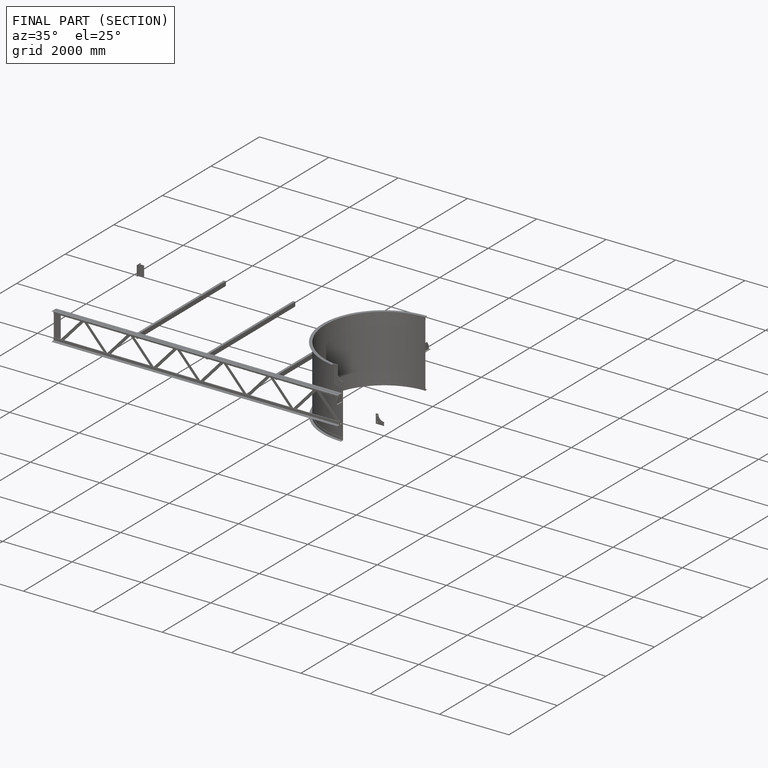
[diagram: finished part — half-section view (interior)]
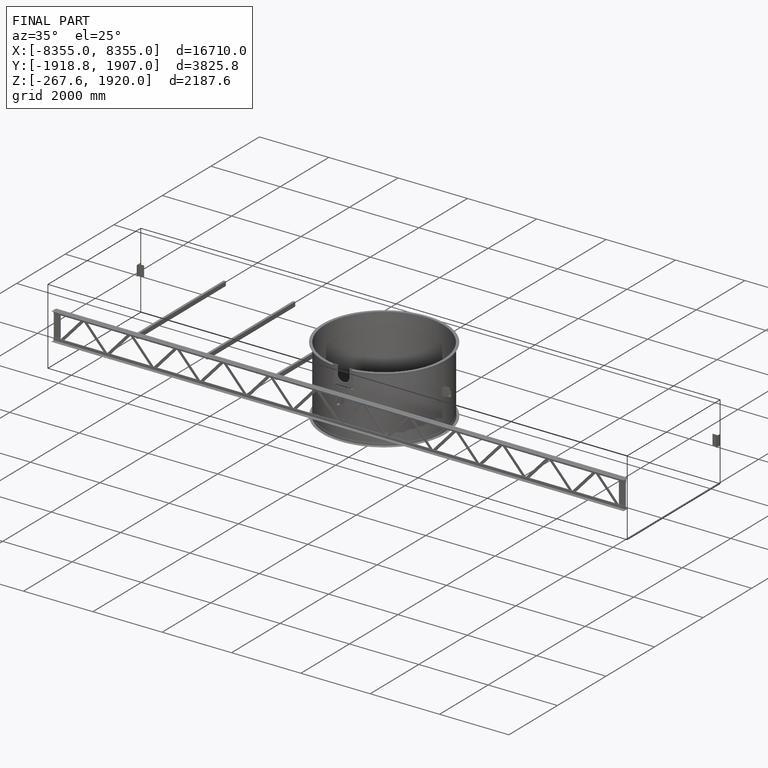
[diagram: finished part — iso view with bounding-box wireframe]
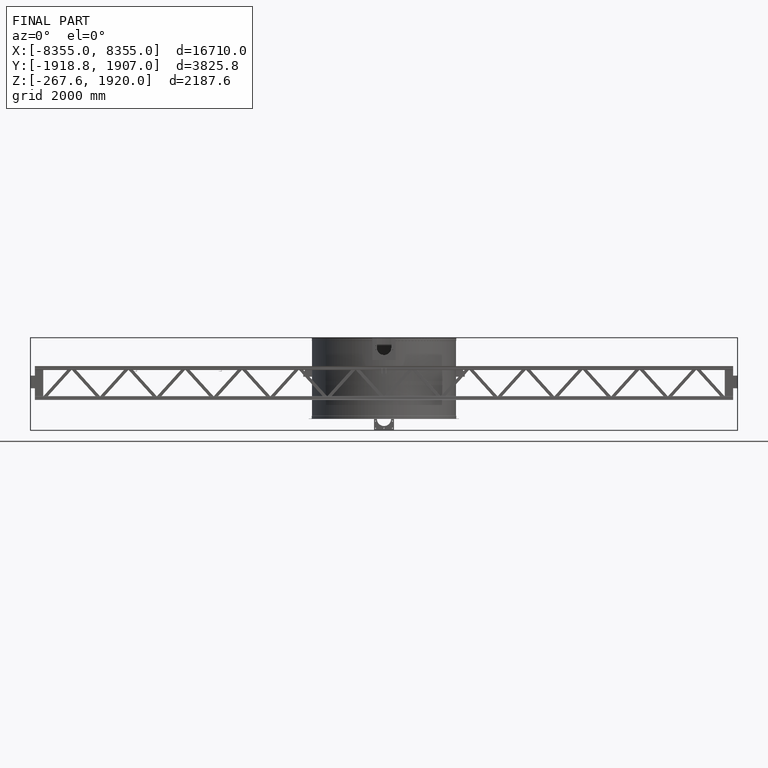
[diagram: finished part — front view with bounding-box wireframe]
